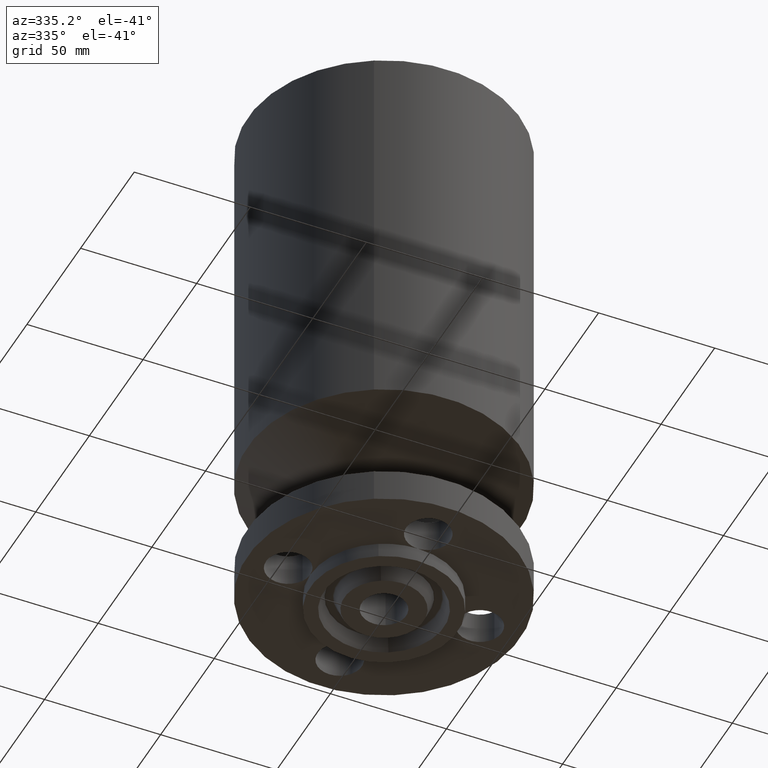
[diagram: clean part render]
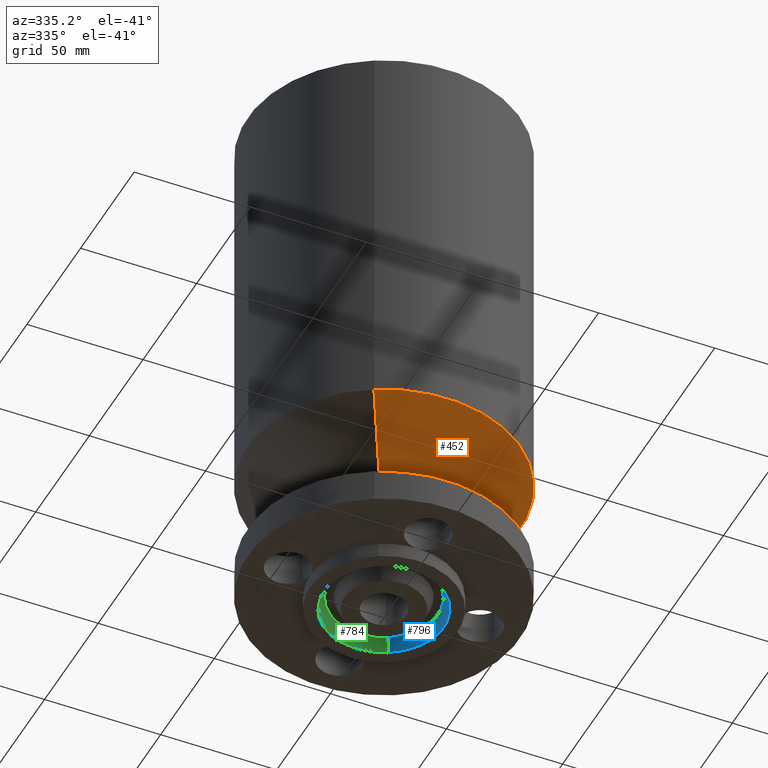
[diagram: same view with three faces highlighted in distinct colors, each labeled with its STEP entity id]
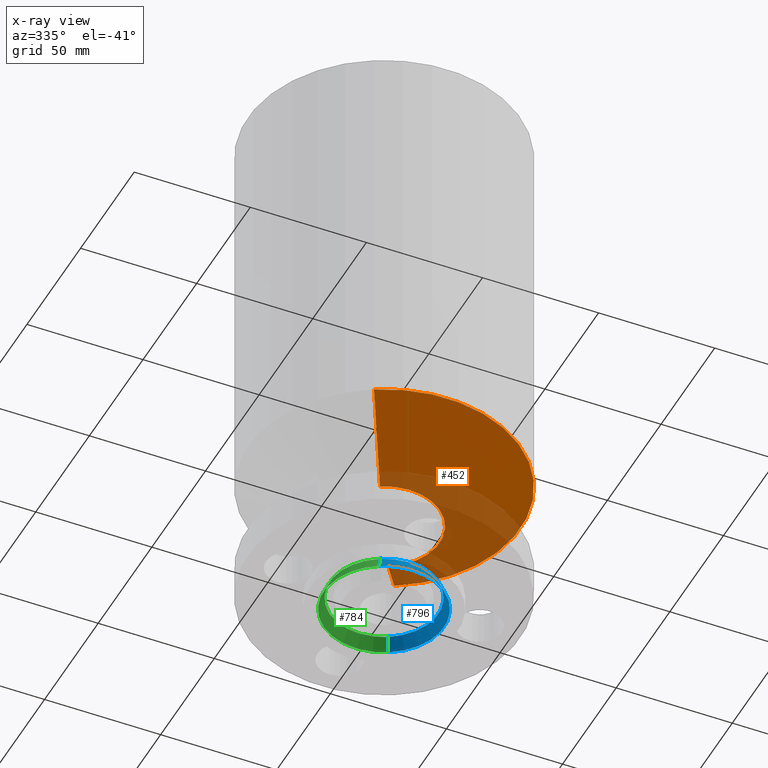
[diagram: x-ray of the same camera — body ghosted, the three highlighted faces saturated]
A machine part, auxiliary view with three faces highlighted in distinct colors.
The next image is the same camera in x-ray (body ghosted, the three faces saturated) — at least one of them is partly hidden behind the body in this view.
Their STEP definitions:

[orange] entity #452 — the highlighted conical surface has half-angle 60 deg.
#393=AXIS2_PLACEMENT_3D('Circle Axis2P3D',#391,#392,$) ;
#425=AXIS2_PLACEMENT_3D('Cone Axis2P3D',#422,#423,#424) ;
#436=AXIS2_PLACEMENT_3D('Circle Axis2P3D',#434,#435,$) ;
#388=CARTESIAN_POINT('Vertex',(0.45066000629,0.82492760818,1.43750000001)) ;
#391=CARTESIAN_POINT('Axis2P3D Location',(0.,0.,1.43750000001)) ;
#395=CARTESIAN_POINT('Vertex',(-0.45066000629,-0.82492760818,1.43750000001)) ;
#422=CARTESIAN_POINT('Axis2P3D Location',(0.,0.,1.43750000001)) ;
#427=CARTESIAN_POINT('Line Origine',(0.779066500235,1.42607166308,1.8329849344)) ;
#431=CARTESIAN_POINT('Vertex',(1.10747299418,2.02721571797,2.2284698688)) ;
#434=CARTESIAN_POINT('Axis2P3D Location',(0.,0.,2.2284698688)) ;
#438=CARTESIAN_POINT('Vertex',(-1.10747299418,-2.02721571797,2.2284698688)) ;
#441=CARTESIAN_POINT('Line Origine',(-0.779066500235,-1.42607166308,1.8329849344)) ;
#392=DIRECTION('Axis2P3D Direction',(0.,0.,-0.0393700787402)) ;
#423=DIRECTION('Axis2P3D Direction',(-0.,-0.,0.0393700787402)) ;
#424=DIRECTION('Axis2P3D XDirection',(0.0188750212049,0.0345504945626,0.)) ;
#428=DIRECTION('Vector Direction',(0.0163462478604,0.0299216060045,0.0196850393701)) ;
#435=DIRECTION('Axis2P3D Direction',(-0.,0.,0.0393700787402)) ;
#442=DIRECTION('Vector Direction',(-0.0163462478604,-0.0299216060045,0.0196850393701)) ;
#429=VECTOR('Line Direction',#428,0.0393700787402) ;
#443=VECTOR('Line Direction',#442,0.0393700787402) ;
#447=ORIENTED_EDGE('',*,*,#397,.F.) ;
#448=ORIENTED_EDGE('',*,*,#433,.T.) ;
#449=ORIENTED_EDGE('',*,*,#440,.T.) ;
#450=ORIENTED_EDGE('',*,*,#445,.F.) ;
#452=ADVANCED_FACE('PartBody',(#451),#426,.T.) ;
#394=CIRCLE('generated circle',#393,0.940000000004) ;
#437=CIRCLE('generated circle',#436,2.31000000001) ;
#426=CONICAL_SURFACE('Cone',#425,0.940000000004,1.0471975512) ;
#397=EDGE_CURVE('',#389,#396,#394,.T.) ;
#433=EDGE_CURVE('',#389,#432,#430,.T.) ;
#440=EDGE_CURVE('',#432,#439,#437,.F.) ;
#445=EDGE_CURVE('',#396,#439,#444,.T.) ;
#446=EDGE_LOOP('',(#447,#448,#449,#450)) ;
#451=FACE_OUTER_BOUND('',#446,.T.) ;
#430=LINE('Line',#427,#429) ;
#444=LINE('Line',#441,#443) ;
#389=VERTEX_POINT('',#388) ;
#396=VERTEX_POINT('',#395) ;
#432=VERTEX_POINT('',#431) ;
#439=VERTEX_POINT('',#438) ;

[blue] entity #796 — the highlighted conical surface has half-angle 23 deg.
#744=AXIS2_PLACEMENT_3D('Circle Axis2P3D',#742,#743,$) ;
#757=AXIS2_PLACEMENT_3D('Cone Axis2P3D',#754,#755,#756) ;
#787=AXIS2_PLACEMENT_3D('Circle Axis2P3D',#785,#786,$) ;
#720=CARTESIAN_POINT('Vertex',(-0.440063979875,-0.80553171193,-0.0188873350169)) ;
#727=CARTESIAN_POINT('Vertex',(0.440063979875,0.80553171193,-0.0188873350169)) ;
#742=CARTESIAN_POINT('Axis2P3D Location',(0.,0.,-0.0188873350169)) ;
#754=CARTESIAN_POINT('Axis2P3D Location',(0.,0.,-0.0188873350169)) ;
#759=CARTESIAN_POINT('Line Origine',(-0.46358016355,-0.848577797407,-0.134443667509)) ;
#763=CARTESIAN_POINT('Vertex',(-0.487096347224,-0.891623882884,-0.250000000001)) ;
#770=CARTESIAN_POINT('Vertex',(0.487096347224,0.891623882884,-0.250000000001)) ;
#773=CARTESIAN_POINT('Line Origine',(0.46358016355,0.848577797407,-0.134443667509)) ;
#785=CARTESIAN_POINT('Axis2P3D Location',(0.,0.,-0.250000000001)) ;
#743=DIRECTION('Axis2P3D Direction',(0.,0.,-0.0393700787402)) ;
#755=DIRECTION('Axis2P3D Direction',(0.,0.,-0.0393700787402)) ;
#756=DIRECTION('Axis2P3D XDirection',(0.0188750212049,0.0345504945626,0.)) ;
#760=DIRECTION('Vector Direction',(-0.00737505833565,-0.0134999537303,-0.0362403485611)) ;
#774=DIRECTION('Vector Direction',(0.00737505833565,0.0134999537303,-0.0362403485611)) ;
#786=DIRECTION('Axis2P3D Direction',(0.,0.,-0.0393700787402)) ;
#761=VECTOR('Line Direction',#760,0.0393700787402) ;
#775=VECTOR('Line Direction',#774,0.0393700787402) ;
#791=ORIENTED_EDGE('',*,*,#746,.F.) ;
#792=ORIENTED_EDGE('',*,*,#777,.T.) ;
#793=ORIENTED_EDGE('',*,*,#789,.T.) ;
#794=ORIENTED_EDGE('',*,*,#765,.F.) ;
#796=ADVANCED_FACE('PartBody',(#795),#758,.F.) ;
#745=CIRCLE('generated circle',#744,0.917898494011) ;
#788=CIRCLE('generated circle',#787,1.016) ;
#758=CONICAL_SURFACE('Cone',#757,0.917898494011,0.401425727959) ;
#746=EDGE_CURVE('',#728,#721,#745,.T.) ;
#765=EDGE_CURVE('',#721,#764,#762,.T.) ;
#777=EDGE_CURVE('',#728,#771,#776,.T.) ;
#789=EDGE_CURVE('',#771,#764,#788,.T.) ;
#790=EDGE_LOOP('',(#791,#792,#793,#794)) ;
#795=FACE_OUTER_BOUND('',#790,.T.) ;
#762=LINE('Line',#759,#761) ;
#776=LINE('Line',#773,#775) ;
#721=VERTEX_POINT('',#720) ;
#728=VERTEX_POINT('',#727) ;
#764=VERTEX_POINT('',#763) ;
#771=VERTEX_POINT('',#770) ;

[green] entity #784 — the highlighted conical surface has half-angle 23 deg.
#725=AXIS2_PLACEMENT_3D('Circle Axis2P3D',#723,#724,$) ;
#757=AXIS2_PLACEMENT_3D('Cone Axis2P3D',#754,#755,#756) ;
#768=AXIS2_PLACEMENT_3D('Circle Axis2P3D',#766,#767,$) ;
#720=CARTESIAN_POINT('Vertex',(-0.440063979875,-0.80553171193,-0.0188873350169)) ;
#723=CARTESIAN_POINT('Axis2P3D Location',(0.,0.,-0.0188873350169)) ;
#727=CARTESIAN_POINT('Vertex',(0.440063979875,0.80553171193,-0.0188873350169)) ;
#754=CARTESIAN_POINT('Axis2P3D Location',(0.,0.,-0.0188873350169)) ;
#759=CARTESIAN_POINT('Line Origine',(-0.46358016355,-0.848577797407,-0.134443667509)) ;
#763=CARTESIAN_POINT('Vertex',(-0.487096347224,-0.891623882884,-0.250000000001)) ;
#766=CARTESIAN_POINT('Axis2P3D Location',(0.,0.,-0.250000000001)) ;
#770=CARTESIAN_POINT('Vertex',(0.487096347224,0.891623882884,-0.250000000001)) ;
#773=CARTESIAN_POINT('Line Origine',(0.46358016355,0.848577797407,-0.134443667509)) ;
#724=DIRECTION('Axis2P3D Direction',(0.,0.,-0.0393700787402)) ;
#755=DIRECTION('Axis2P3D Direction',(0.,0.,-0.0393700787402)) ;
#756=DIRECTION('Axis2P3D XDirection',(0.0188750212049,0.0345504945626,0.)) ;
#760=DIRECTION('Vector Direction',(-0.00737505833565,-0.0134999537303,-0.0362403485611)) ;
#767=DIRECTION('Axis2P3D Direction',(0.,0.,-0.0393700787402)) ;
#774=DIRECTION('Vector Direction',(0.00737505833565,0.0134999537303,-0.0362403485611)) ;
#761=VECTOR('Line Direction',#760,0.0393700787402) ;
#775=VECTOR('Line Direction',#774,0.0393700787402) ;
#779=ORIENTED_EDGE('',*,*,#729,.F.) ;
#780=ORIENTED_EDGE('',*,*,#765,.T.) ;
#781=ORIENTED_EDGE('',*,*,#772,.T.) ;
#782=ORIENTED_EDGE('',*,*,#777,.F.) ;
#784=ADVANCED_FACE('PartBody',(#783),#758,.F.) ;
#726=CIRCLE('generated circle',#725,0.917898494011) ;
#769=CIRCLE('generated circle',#768,1.016) ;
#758=CONICAL_SURFACE('Cone',#757,0.917898494011,0.401425727959) ;
#729=EDGE_CURVE('',#721,#728,#726,.T.) ;
#765=EDGE_CURVE('',#721,#764,#762,.T.) ;
#772=EDGE_CURVE('',#764,#771,#769,.T.) ;
#777=EDGE_CURVE('',#728,#771,#776,.T.) ;
#778=EDGE_LOOP('',(#779,#780,#781,#782)) ;
#783=FACE_OUTER_BOUND('',#778,.T.) ;
#762=LINE('Line',#759,#761) ;
#776=LINE('Line',#773,#775) ;
#721=VERTEX_POINT('',#720) ;
#728=VERTEX_POINT('',#727) ;
#764=VERTEX_POINT('',#763) ;
#771=VERTEX_POINT('',#770) ;